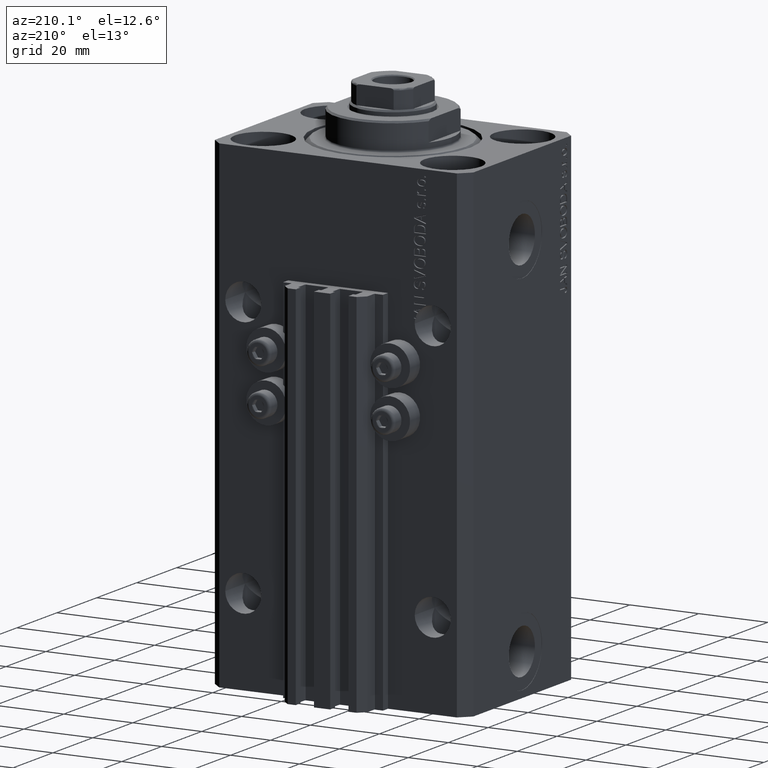
[diagram: clean part render]
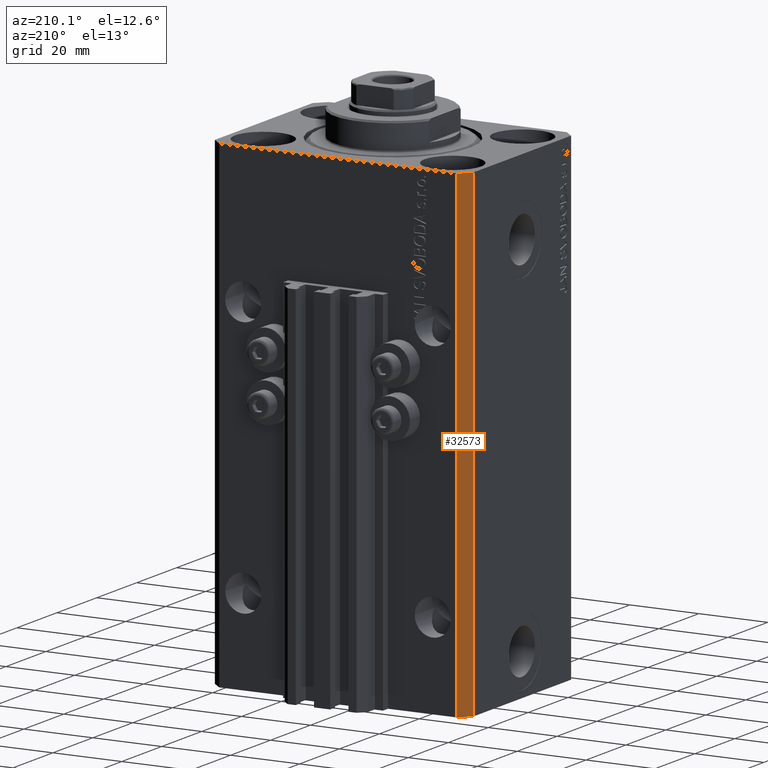
[diagram: same view with one face highlighted and labeled with its STEP entity id]
A machine part, auxiliary view. The second image highlights one B-rep face of the part: STEP entity #32573.
In plain terms, the highlighted planar face has unit normal (-0.7071, 0.7071, 0).
Its self-contained STEP definition (entity closure, byte-faithful):
#510 = VECTOR ( 'NONE', #46630, 1000.000000000000000 ) ;
#1594 = VERTEX_POINT ( 'NONE', #41866 ) ;
#2860 = DIRECTION ( 'NONE',  ( -0.7071067811865471286, -0.7071067811865479058, 0.000000000000000000 ) ) ;
#3838 = CARTESIAN_POINT ( 'NONE',  ( -37.49999999999999289, 24.50000000000000000, -140.0000000000000000 ) ) ;
#5232 = EDGE_CURVE ( 'NONE', #36692, #31718, #23488, .T. ) ;
#6379 = EDGE_CURVE ( 'NONE', #24185, #1594, #43820, .T. ) ;
#7067 = VECTOR ( 'NONE', #38261, 1000.000000000000000 ) ;
#8409 = ORIENTED_EDGE ( 'NONE', *, *, #24496, .T. ) ;
#10292 = LINE ( 'NONE', #16852, #510 ) ;
#13513 = CARTESIAN_POINT ( 'NONE',  ( -34.49999999999999289, 27.50000000000000000, -140.0000000000000000 ) ) ;
#14728 = VECTOR ( 'NONE', #36551, 1000.000000000000000 ) ;
#16282 = CARTESIAN_POINT ( 'NONE',  ( -34.49999999999999289, 27.50000000000000000, -140.0000000000000000 ) ) ;
#16852 = CARTESIAN_POINT ( 'NONE',  ( -34.49999999999999289, 27.50000000000000000, 0.000000000000000000 ) ) ;
#17161 = FACE_OUTER_BOUND ( 'NONE', #32345, .T. ) ;
#18603 = CARTESIAN_POINT ( 'NONE',  ( -34.49999999999999289, 27.50000000000000000, -140.0000000000000000 ) ) ;
#19918 = DIRECTION ( 'NONE',  ( -0.7071067811865471286, -0.7071067811865479058, 0.000000000000000000 ) ) ;
#21027 = DIRECTION ( 'NONE',  ( -0.7071067811865479058, 0.7071067811865471286, 0.000000000000000000 ) ) ;
#23488 = LINE ( 'NONE', #31012, #7067 ) ;
#24185 = VERTEX_POINT ( 'NONE', #18603 ) ;
#24494 = ORIENTED_EDGE ( 'NONE', *, *, #5232, .T. ) ;
#24496 = EDGE_CURVE ( 'NONE', #24185, #36692, #38311, .T. ) ;
#25421 = CARTESIAN_POINT ( 'NONE',  ( -34.49999999999999289, 27.50000000000000000, -140.0000000000000000 ) ) ;
#28681 = AXIS2_PLACEMENT_3D ( 'NONE', #13513, #21027, #2860 ) ;
#31012 = CARTESIAN_POINT ( 'NONE',  ( -37.49999999999999289, 24.50000000000000000, -140.0000000000000000 ) ) ;
#31704 = ORIENTED_EDGE ( 'NONE', *, *, #45628, .F. ) ;
#31718 = VERTEX_POINT ( 'NONE', #36773 ) ;
#32345 = EDGE_LOOP ( 'NONE', ( #31704, #46020, #8409, #24494 ) ) ;
#32573 = ADVANCED_FACE ( 'NONE', ( #17161 ), #46699, .T. ) ;
#36551 = DIRECTION ( 'NONE',  ( 0.000000000000000000, 0.000000000000000000, 1.000000000000000000 ) ) ;
#36692 = VERTEX_POINT ( 'NONE', #3838 ) ;
#36773 = CARTESIAN_POINT ( 'NONE',  ( -37.49999999999999289, 24.50000000000000000, 0.000000000000000000 ) ) ;
#37041 = VECTOR ( 'NONE', #19918, 1000.000000000000000 ) ;
#38261 = DIRECTION ( 'NONE',  ( 0.000000000000000000, 0.000000000000000000, 1.000000000000000000 ) ) ;
#38311 = LINE ( 'NONE', #16282, #37041 ) ;
#41866 = CARTESIAN_POINT ( 'NONE',  ( -34.49999999999999289, 27.50000000000000000, 0.000000000000000000 ) ) ;
#43820 = LINE ( 'NONE', #25421, #14728 ) ;
#45628 = EDGE_CURVE ( 'NONE', #1594, #31718, #10292, .T. ) ;
#46020 = ORIENTED_EDGE ( 'NONE', *, *, #6379, .F. ) ;
#46630 = DIRECTION ( 'NONE',  ( -0.7071067811865471286, -0.7071067811865479058, 0.000000000000000000 ) ) ;
#46699 = PLANE ( 'NONE',  #28681 ) ;